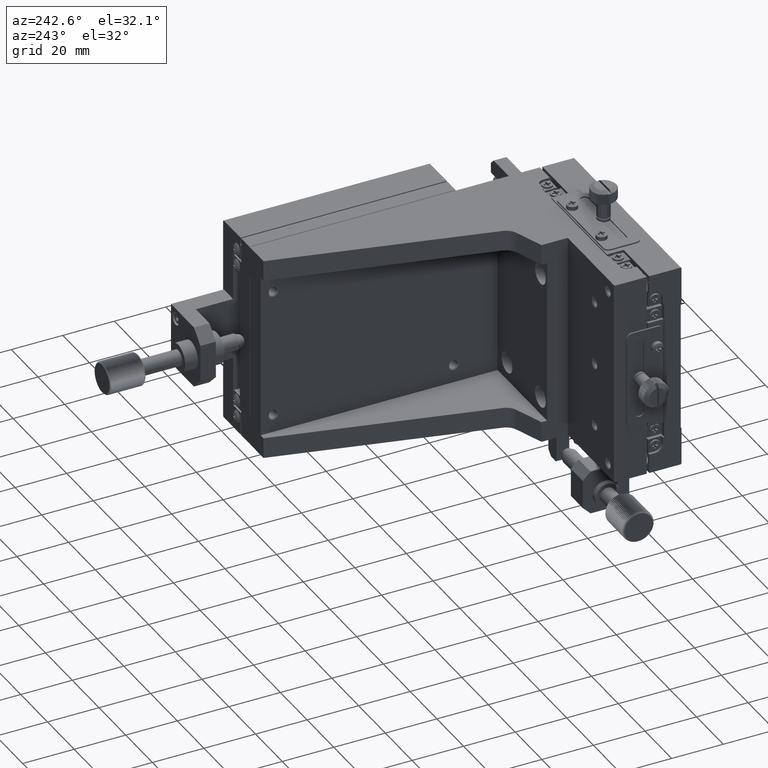
[diagram: clean part render]
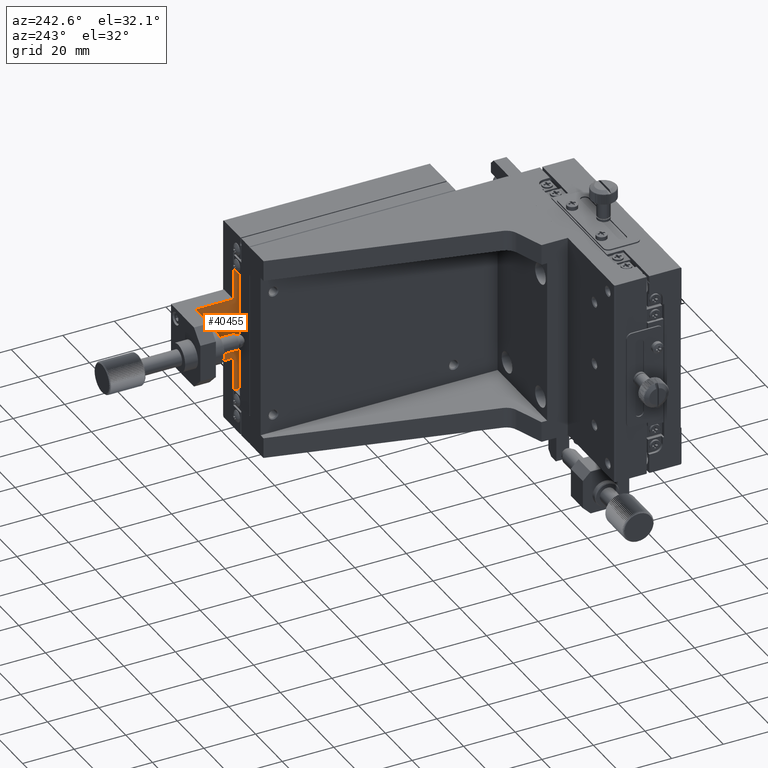
[diagram: same view with one face highlighted and labeled with its STEP entity id]
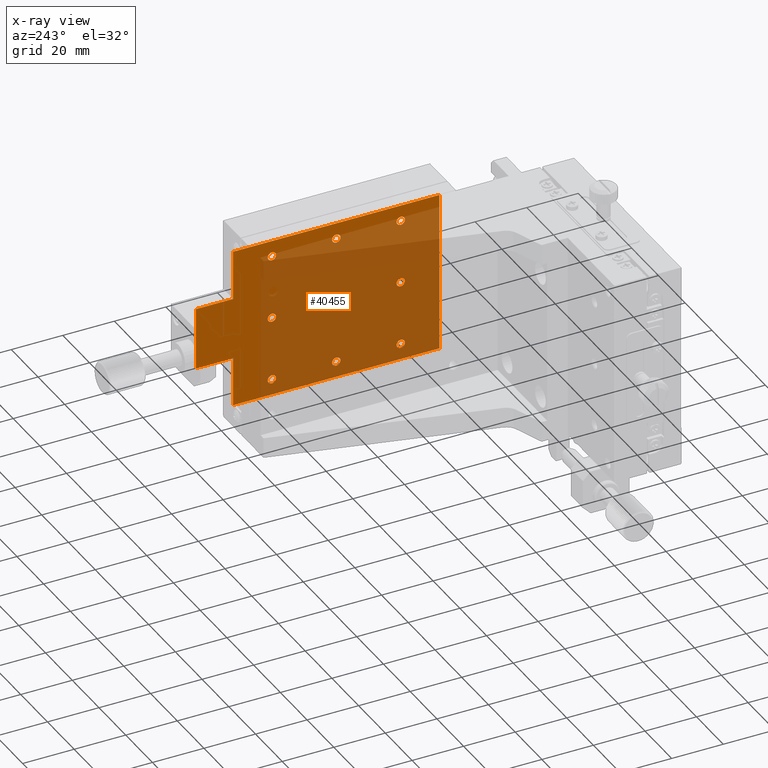
[diagram: x-ray of the same camera — body ghosted, the highlighted face saturated]
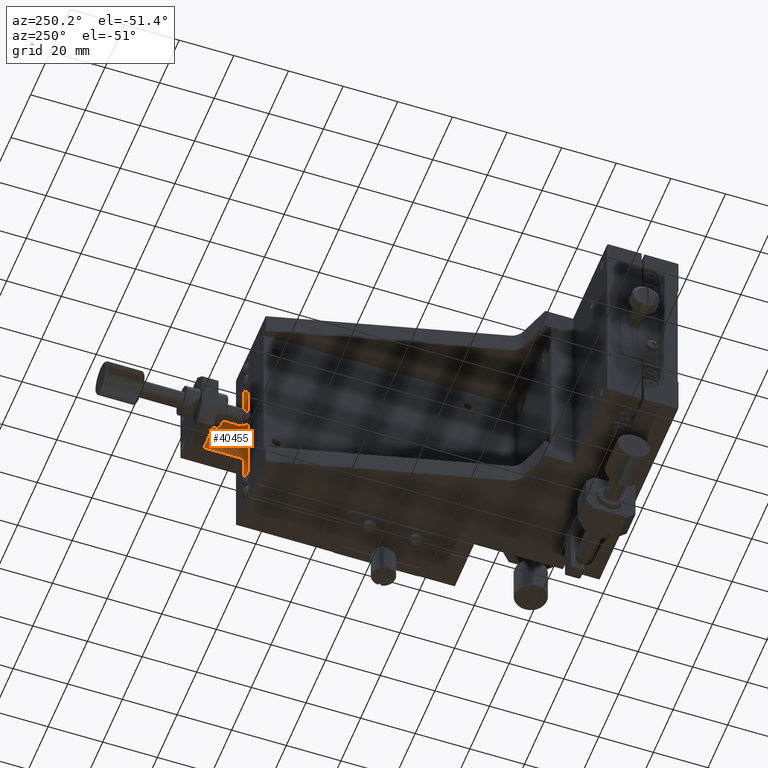
[diagram: same view with one face highlighted and labeled with its STEP entity id]
A machine part, auxiliary view. The second image highlights one B-rep face of the part: STEP entity #40455.
The next image is the same camera in x-ray: the body ghosted, the highlighted face saturated — about 74% of this face is hidden behind the body in this view.
A second angle (auxiliary view) of the same face is appended — the face is thin or edge-on in the first view.
In plain terms, the highlighted planar face has unit normal (1, -0, 0).
Its self-contained STEP definition (entity closure, byte-faithful):
#1725 = VECTOR ( 'NONE', #65513, 1000.000000000000000 ) ;
#2551 = ORIENTED_EDGE ( 'NONE', *, *, #54205, .T. ) ;
#3432 = EDGE_LOOP ( 'NONE', ( #43209 ) ) ;
#3651 = DIRECTION ( 'NONE',  ( 1.000000000000000000, -0.000000000000000000, -0.000000000000000000 ) ) ;
#3813 = AXIS2_PLACEMENT_3D ( 'NONE', #39839, #78886, #66533 ) ;
#4118 = EDGE_CURVE ( 'NONE', #31660, #31660, #43987, .T. ) ;
#5544 = CARTESIAN_POINT ( 'NONE',  ( 12.50000000000000000, 60.00000000000000000, -15.00000000000000000 ) ) ;
#6387 = VECTOR ( 'NONE', #78568, 1000.000000000000000 ) ;
#6511 = VECTOR ( 'NONE', #53352, 1000.000000000000000 ) ;
#6906 = EDGE_LOOP ( 'NONE', ( #2551 ) ) ;
#7394 = DIRECTION ( 'NONE',  ( 1.000000000000000000, -0.000000000000000000, -0.000000000000000000 ) ) ;
#8455 = VERTEX_POINT ( 'NONE', #9651 ) ;
#8851 = VERTEX_POINT ( 'NONE', #15246 ) ;
#9186 = ORIENTED_EDGE ( 'NONE', *, *, #74219, .T. ) ;
#9332 = DIRECTION ( 'NONE',  ( 0.000000000000000000, 1.000000000000000000, -0.000000000000000000 ) ) ;
#9504 = EDGE_LOOP ( 'NONE', ( #10825 ) ) ;
#9651 = CARTESIAN_POINT ( 'NONE',  ( 12.50000000000000000, 85.00000000000000000, -13.37899999999999778 ) ) ;
#9911 = CARTESIAN_POINT ( 'NONE',  ( 12.50000000000000000, 85.00000000000000000, -65.00000000000000000 ) ) ;
#10273 = EDGE_CURVE ( 'NONE', #70340, #70340, #61160, .T. ) ;
#10371 = EDGE_CURVE ( 'NONE', #8851, #8851, #15281, .T. ) ;
#10452 = CARTESIAN_POINT ( 'NONE',  ( 12.50000000000000000, 100.0000000000000000, -2.500000000000000000 ) ) ;
#10504 = CARTESIAN_POINT ( 'NONE',  ( 12.50000000000000178, 114.4999999999999858, -27.99999999999999645 ) ) ;
#10789 = CARTESIAN_POINT ( 'NONE',  ( 12.50000000000000000, 114.4999999999999858, -71.20000000000000284 ) ) ;
#10825 = ORIENTED_EDGE ( 'NONE', *, *, #15602, .T. ) ;
#11177 = EDGE_CURVE ( 'NONE', #51986, #51986, #15392, .T. ) ;
#12307 = VERTEX_POINT ( 'NONE', #23907 ) ;
#12342 = VERTEX_POINT ( 'NONE', #72724 ) ;
#13084 = CARTESIAN_POINT ( 'NONE',  ( 12.50000000000000178, 100.0000000000000142, -71.20000000000000284 ) ) ;
#14158 = CARTESIAN_POINT ( 'NONE',  ( 12.50000000000000000, 100.0000000000000000, -8.800000000000000711 ) ) ;
#14574 = DIRECTION ( 'NONE',  ( 1.000000000000000000, -0.000000000000000000, -0.000000000000000000 ) ) ;
#14614 = EDGE_LOOP ( 'NONE', ( #20644 ) ) ;
#15031 = FACE_BOUND ( 'NONE', #9504, .T. ) ;
#15246 = CARTESIAN_POINT ( 'NONE',  ( 12.50000000000000000, 35.00000000000000000, -38.37900000000000489 ) ) ;
#15281 = CIRCLE ( 'NONE', #3813, 1.620999999999997332 ) ;
#15392 = CIRCLE ( 'NONE', #20537, 1.621000000000000885 ) ;
#15602 = EDGE_CURVE ( 'NONE', #8455, #8455, #23595, .T. ) ;
#15812 = FACE_BOUND ( 'NONE', #3432, .T. ) ;
#15837 = CARTESIAN_POINT ( 'NONE',  ( 12.50000000000000178, 20.00000000000000355, -8.800000000000000711 ) ) ;
#16253 = VERTEX_POINT ( 'NONE', #17614 ) ;
#16717 = AXIS2_PLACEMENT_3D ( 'NONE', #64749, #3651, #70737 ) ;
#17614 = CARTESIAN_POINT ( 'NONE',  ( 12.50000000000000178, 114.4999999999999858, -52.00000000000001421 ) ) ;
#20141 = EDGE_CURVE ( 'NONE', #69586, #43236, #26550, .T. ) ;
#20537 = AXIS2_PLACEMENT_3D ( 'NONE', #5544, #67815, #53888 ) ;
#20644 = ORIENTED_EDGE ( 'NONE', *, *, #10273, .T. ) ;
#21032 = FACE_BOUND ( 'NONE', #71776, .T. ) ;
#21846 = EDGE_LOOP ( 'NONE', ( #74734 ) ) ;
#22035 = CARTESIAN_POINT ( 'NONE',  ( 12.50000000000000000, 60.00000000000000000, -13.37899999999999778 ) ) ;
#22207 = FACE_BOUND ( 'NONE', #21846, .T. ) ;
#23013 = CARTESIAN_POINT ( 'NONE',  ( 12.50000000000000000, 85.00000000000000000, -38.37900000000000489 ) ) ;
#23371 = DIRECTION ( 'NONE',  ( 1.000000000000000000, -0.000000000000000000, -0.000000000000000000 ) ) ;
#23595 = CIRCLE ( 'NONE', #26179, 1.621000000000000885 ) ;
#23907 = CARTESIAN_POINT ( 'NONE',  ( 12.50000000000000000, 85.00000000000000000, -63.37900000000000489 ) ) ;
#24672 = DIRECTION ( 'NONE',  ( 0.000000000000000000, 0.000000000000000000, 1.000000000000000000 ) ) ;
#26179 = AXIS2_PLACEMENT_3D ( 'NONE', #43066, #49822, #24672 ) ;
#26464 = CARTESIAN_POINT ( 'NONE',  ( 12.50000000000000000, 60.00000000000000000, -63.37900000000000489 ) ) ;
#26550 = LINE ( 'NONE', #14158, #30650 ) ;
#27255 = DIRECTION ( 'NONE',  ( 0.000000000000000000, -0.000000000000000000, 1.000000000000000000 ) ) ;
#27409 = FACE_BOUND ( 'NONE', #52701, .T. ) ;
#28240 = VERTEX_POINT ( 'NONE', #34233 ) ;
#28326 = LINE ( 'NONE', #61002, #6387 ) ;
#30650 = VECTOR ( 'NONE', #9332, 1000.000000000000000 ) ;
#31660 = VERTEX_POINT ( 'NONE', #32056 ) ;
#32056 = CARTESIAN_POINT ( 'NONE',  ( 12.50000000000000000, 35.00000000000000000, -63.37900000000000489 ) ) ;
#33277 = EDGE_CURVE ( 'NONE', #16253, #34991, #65879, .T. ) ;
#34233 = CARTESIAN_POINT ( 'NONE',  ( 12.50000000000000000, 35.00000000000000000, -13.37899999999999778 ) ) ;
#34991 = VERTEX_POINT ( 'NONE', #10504 ) ;
#36191 = LINE ( 'NONE', #78852, #6511 ) ;
#37395 = ORIENTED_EDGE ( 'NONE', *, *, #48682, .T. ) ;
#38165 = DIRECTION ( 'NONE',  ( 0.000000000000000000, 0.000000000000000000, 1.000000000000000000 ) ) ;
#39030 = CARTESIAN_POINT ( 'NONE',  ( 12.50000000000000178, 100.0000000000000142, -8.800000000000000711 ) ) ;
#39757 = AXIS2_PLACEMENT_3D ( 'NONE', #68882, #7394, #38165 ) ;
#39778 = FACE_BOUND ( 'NONE', #14614, .T. ) ;
#39839 = CARTESIAN_POINT ( 'NONE',  ( 12.50000000000000000, 35.00000000000000000, -40.00000000000000000 ) ) ;
#40455 = ADVANCED_FACE ( 'NONE', ( #63722, #15031, #22207, #27409, #15812, #39778, #75729, #21032, #69730 ), #63341, .F. ) ;
#40586 = DIRECTION ( 'NONE',  ( 1.000000000000000000, -0.000000000000000000, 0.000000000000000000 ) ) ;
#40619 = EDGE_LOOP ( 'NONE', ( #72848 ) ) ;
#40891 = LINE ( 'NONE', #65229, #71768 ) ;
#41137 = VERTEX_POINT ( 'NONE', #71493 ) ;
#41639 = ORIENTED_EDGE ( 'NONE', *, *, #75244, .T. ) ;
#42326 = CIRCLE ( 'NONE', #39757, 1.620999999999997332 ) ;
#43066 = CARTESIAN_POINT ( 'NONE',  ( 12.50000000000000000, 85.00000000000000000, -15.00000000000000000 ) ) ;
#43209 = ORIENTED_EDGE ( 'NONE', *, *, #4118, .T. ) ;
#43236 = VERTEX_POINT ( 'NONE', #39030 ) ;
#43987 = CIRCLE ( 'NONE', #64367, 1.620999999999997332 ) ;
#47143 = CARTESIAN_POINT ( 'NONE',  ( 12.50000000000000000, 100.0000000000000000, -2.500000000000000000 ) ) ;
#48475 = VECTOR ( 'NONE', #27255, 1000.000000000000000 ) ;
#48682 = EDGE_CURVE ( 'NONE', #69384, #41137, #40891, .T. ) ;
#49822 = DIRECTION ( 'NONE',  ( 1.000000000000000000, -0.000000000000000000, -0.000000000000000000 ) ) ;
#50451 = ORIENTED_EDGE ( 'NONE', *, *, #73022, .F. ) ;
#51423 = AXIS2_PLACEMENT_3D ( 'NONE', #70109, #40586, #64116 ) ;
#51589 = LINE ( 'NONE', #57970, #70126 ) ;
#51986 = VERTEX_POINT ( 'NONE', #22035 ) ;
#52000 = CARTESIAN_POINT ( 'NONE',  ( 12.50000000000000178, 100.0000000000000142, -27.99999999999999645 ) ) ;
#52701 = EDGE_LOOP ( 'NONE', ( #60056 ) ) ;
#53156 = LINE ( 'NONE', #47143, #1725 ) ;
#53352 = DIRECTION ( 'NONE',  ( 0.000000000000000000, -0.000000000000000000, 1.000000000000000000 ) ) ;
#53365 = VERTEX_POINT ( 'NONE', #23013 ) ;
#53888 = DIRECTION ( 'NONE',  ( 0.000000000000000000, 0.000000000000000000, 1.000000000000000000 ) ) ;
#54205 = EDGE_CURVE ( 'NONE', #12307, #12307, #78625, .T. ) ;
#56914 = DIRECTION ( 'NONE',  ( 0.000000000000000000, 0.000000000000000000, 1.000000000000000000 ) ) ;
#57801 = DIRECTION ( 'NONE',  ( 1.000000000000000000, -0.000000000000000000, -0.000000000000000000 ) ) ;
#57921 = ORIENTED_EDGE ( 'NONE', *, *, #78173, .F. ) ;
#57970 = CARTESIAN_POINT ( 'NONE',  ( 12.50000000000000000, 100.0000000000000000, -52.00000000000001421 ) ) ;
#58769 = VECTOR ( 'NONE', #59886, 1000.000000000000000 ) ;
#58974 = CARTESIAN_POINT ( 'NONE',  ( 12.50000000000000000, 60.00000000000000000, -65.00000000000000000 ) ) ;
#59246 = DIRECTION ( 'NONE',  ( -0.000000000000000000, -1.000000000000000000, -0.000000000000000000 ) ) ;
#59886 = DIRECTION ( 'NONE',  ( -0.000000000000000000, -0.000000000000000000, 1.000000000000000000 ) ) ;
#60056 = ORIENTED_EDGE ( 'NONE', *, *, #10371, .T. ) ;
#61002 = CARTESIAN_POINT ( 'NONE',  ( 12.50000000000000000, 100.0000000000000000, -27.99999999999999645 ) ) ;
#61160 = CIRCLE ( 'NONE', #70107, 1.620999999999997332 ) ;
#63341 = PLANE ( 'NONE',  #51423 ) ;
#63722 = FACE_BOUND ( 'NONE', #40619, .T. ) ;
#64116 = DIRECTION ( 'NONE',  ( 0.000000000000000000, 0.000000000000000000, -1.000000000000000000 ) ) ;
#64367 = AXIS2_PLACEMENT_3D ( 'NONE', #73695, #14574, #56914 ) ;
#64749 = CARTESIAN_POINT ( 'NONE',  ( 12.50000000000000000, 35.00000000000000000, -15.00000000000000000 ) ) ;
#65151 = LINE ( 'NONE', #10452, #48475 ) ;
#65229 = CARTESIAN_POINT ( 'NONE',  ( 12.50000000000000000, 100.0000000000000000, -71.20000000000000284 ) ) ;
#65365 = DIRECTION ( 'NONE',  ( 0.000000000000000000, 0.000000000000000000, 1.000000000000000000 ) ) ;
#65513 = DIRECTION ( 'NONE',  ( 0.000000000000000000, -0.000000000000000000, 1.000000000000000000 ) ) ;
#65879 = LINE ( 'NONE', #10789, #58769 ) ;
#66533 = DIRECTION ( 'NONE',  ( 0.000000000000000000, 0.000000000000000000, 1.000000000000000000 ) ) ;
#66871 = DIRECTION ( 'NONE',  ( 0.000000000000000000, 0.000000000000000000, 1.000000000000000000 ) ) ;
#67302 = EDGE_CURVE ( 'NONE', #69384, #12342, #65151, .T. ) ;
#67815 = DIRECTION ( 'NONE',  ( 1.000000000000000000, -0.000000000000000000, -0.000000000000000000 ) ) ;
#68452 = AXIS2_PLACEMENT_3D ( 'NONE', #9911, #23371, #66871 ) ;
#68882 = CARTESIAN_POINT ( 'NONE',  ( 12.50000000000000000, 85.00000000000000000, -40.00000000000000000 ) ) ;
#69306 = EDGE_CURVE ( 'NONE', #34991, #70399, #28326, .T. ) ;
#69384 = VERTEX_POINT ( 'NONE', #13084 ) ;
#69586 = VERTEX_POINT ( 'NONE', #15837 ) ;
#69730 = FACE_OUTER_BOUND ( 'NONE', #75791, .T. ) ;
#69948 = DIRECTION ( 'NONE',  ( 0.000000000000000000, 1.000000000000000000, 0.000000000000000000 ) ) ;
#70107 = AXIS2_PLACEMENT_3D ( 'NONE', #58974, #57801, #65365 ) ;
#70109 = CARTESIAN_POINT ( 'NONE',  ( 12.50000000000000000, 100.0000000000000000, -71.20000000000000284 ) ) ;
#70126 = VECTOR ( 'NONE', #69948, 1000.000000000000000 ) ;
#70340 = VERTEX_POINT ( 'NONE', #26464 ) ;
#70399 = VERTEX_POINT ( 'NONE', #52000 ) ;
#70737 = DIRECTION ( 'NONE',  ( 0.000000000000000000, 0.000000000000000000, 1.000000000000000000 ) ) ;
#71082 = ORIENTED_EDGE ( 'NONE', *, *, #67302, .F. ) ;
#71493 = CARTESIAN_POINT ( 'NONE',  ( 12.50000000000000000, 20.00000000000000355, -71.20000000000000284 ) ) ;
#71682 = ORIENTED_EDGE ( 'NONE', *, *, #33277, .F. ) ;
#71768 = VECTOR ( 'NONE', #59246, 1000.000000000000000 ) ;
#71776 = EDGE_LOOP ( 'NONE', ( #41639 ) ) ;
#72724 = CARTESIAN_POINT ( 'NONE',  ( 12.50000000000000178, 100.0000000000000142, -52.00000000000001421 ) ) ;
#72743 = ORIENTED_EDGE ( 'NONE', *, *, #69306, .F. ) ;
#72826 = CIRCLE ( 'NONE', #16717, 1.621000000000000885 ) ;
#72848 = ORIENTED_EDGE ( 'NONE', *, *, #11177, .T. ) ;
#73022 = EDGE_CURVE ( 'NONE', #12342, #16253, #51589, .T. ) ;
#73695 = CARTESIAN_POINT ( 'NONE',  ( 12.50000000000000000, 35.00000000000000000, -65.00000000000000000 ) ) ;
#74219 = EDGE_CURVE ( 'NONE', #41137, #69586, #36191, .T. ) ;
#74355 = EDGE_CURVE ( 'NONE', #28240, #28240, #72826, .T. ) ;
#74734 = ORIENTED_EDGE ( 'NONE', *, *, #74355, .T. ) ;
#75244 = EDGE_CURVE ( 'NONE', #53365, #53365, #42326, .T. ) ;
#75729 = FACE_BOUND ( 'NONE', #6906, .T. ) ;
#75791 = EDGE_LOOP ( 'NONE', ( #57921, #72743, #71682, #50451, #71082, #37395, #9186, #76581 ) ) ;
#76581 = ORIENTED_EDGE ( 'NONE', *, *, #20141, .T. ) ;
#78173 = EDGE_CURVE ( 'NONE', #70399, #43236, #53156, .T. ) ;
#78568 = DIRECTION ( 'NONE',  ( -0.000000000000000000, -1.000000000000000000, -0.000000000000000000 ) ) ;
#78625 = CIRCLE ( 'NONE', #68452, 1.620999999999997332 ) ;
#78852 = CARTESIAN_POINT ( 'NONE',  ( 12.50000000000000000, 20.00000000000000000, -2.500000000000000000 ) ) ;
#78886 = DIRECTION ( 'NONE',  ( 1.000000000000000000, -0.000000000000000000, -0.000000000000000000 ) ) ;